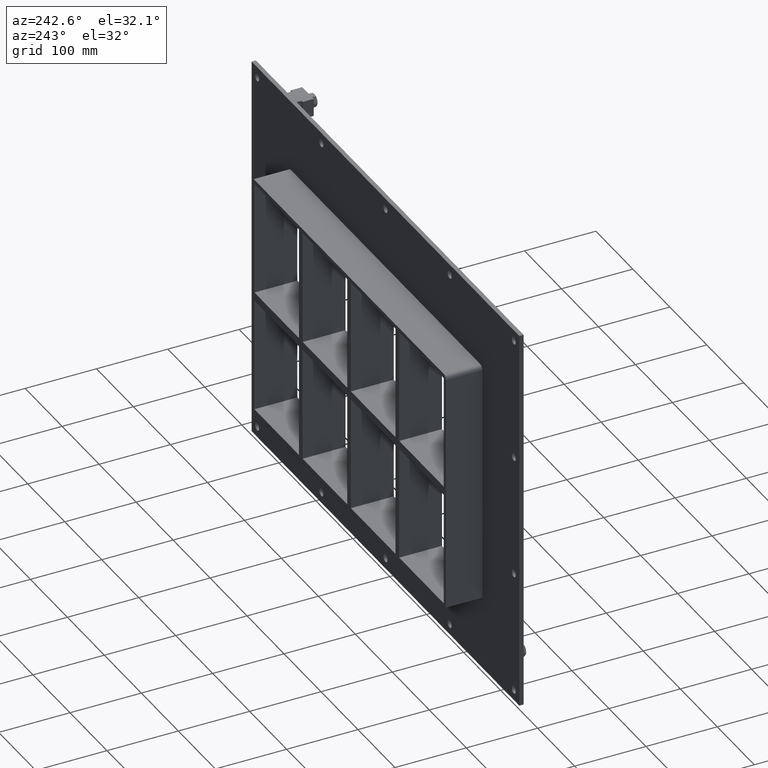
[diagram: clean part render]
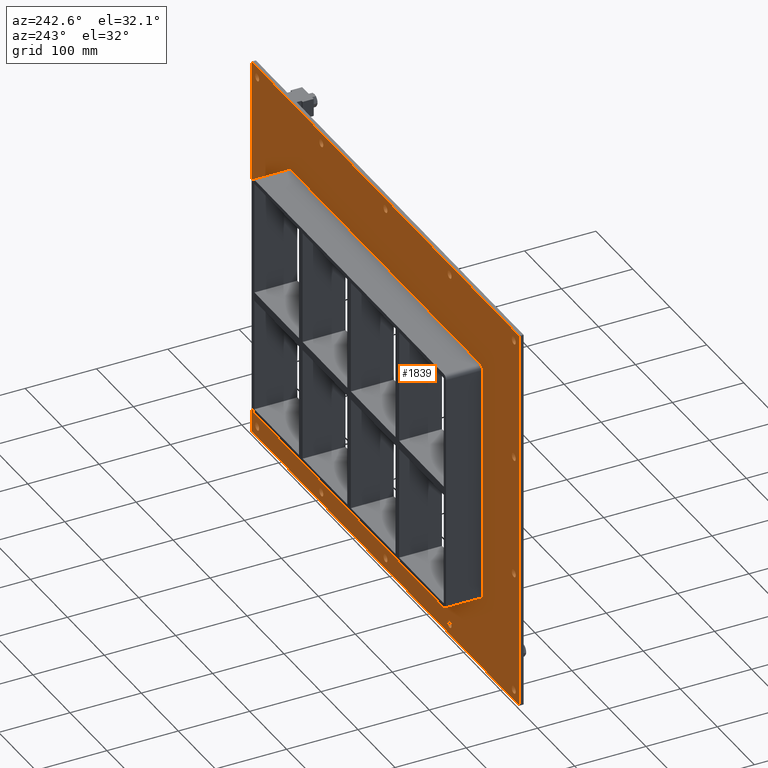
[diagram: same view with one face highlighted and labeled with its STEP entity id]
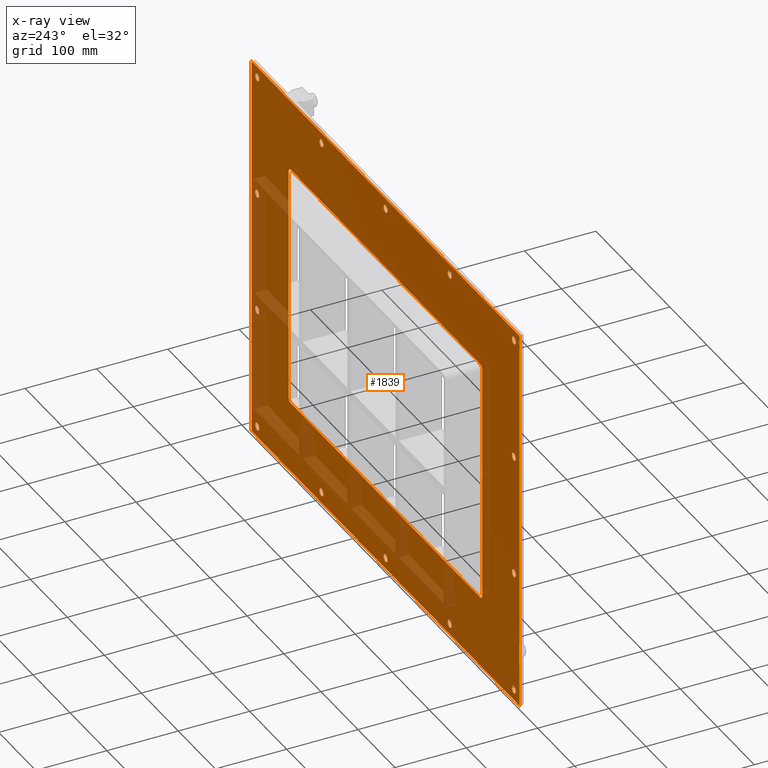
[diagram: x-ray of the same camera — body ghosted, the highlighted face saturated]
A machine part, auxiliary view. The second image highlights one B-rep face of the part: STEP entity #1839.
The next image is the same camera in x-ray: the body ghosted, the highlighted face saturated — about 17% of this face is hidden behind the body in this view.
In plain terms, the highlighted planar face has unit normal (0, 1, 0).
Its self-contained STEP definition (entity closure, byte-faithful):
#73=CARTESIAN_POINT('',(-352.25000000000017,5.999999999999943,-256.50000000000006));
#74=VERTEX_POINT('',#73);
#75=CARTESIAN_POINT('',(-347.00000000000017,5.999999999999943,-256.50000000000006));
#76=DIRECTION('',(0.0,-1.0,0.0));
#77=DIRECTION('',(1.0,0.0,0.0));
#78=AXIS2_PLACEMENT_3D('',#75,#76,#77);
#79=CIRCLE('',#78,5.25);
#80=EDGE_CURVE('',#74,#74,#79,.T.);
#101=CARTESIAN_POINT('',(341.74999999999989,5.999999999999943,-85.500000000000043));
#102=VERTEX_POINT('',#101);
#103=CARTESIAN_POINT('',(346.99999999999989,5.999999999999943,-85.500000000000043));
#104=DIRECTION('',(0.0,-1.0,0.0));
#105=DIRECTION('',(1.0,0.0,0.0));
#106=AXIS2_PLACEMENT_3D('',#103,#104,#105);
#107=CIRCLE('',#106,5.25);
#108=EDGE_CURVE('',#102,#102,#107,.T.);
#129=CARTESIAN_POINT('',(-352.25000000000017,5.999999999999943,-85.500000000000043));
#130=VERTEX_POINT('',#129);
#131=CARTESIAN_POINT('',(-347.00000000000017,5.999999999999943,-85.500000000000043));
#132=DIRECTION('',(0.0,-1.0,0.0));
#133=DIRECTION('',(1.0,0.0,0.0));
#134=AXIS2_PLACEMENT_3D('',#131,#132,#133);
#135=CIRCLE('',#134,5.25);
#136=EDGE_CURVE('',#130,#130,#135,.T.);
#157=CARTESIAN_POINT('',(341.74999999999989,5.999999999999943,85.499999999999972));
#158=VERTEX_POINT('',#157);
#159=CARTESIAN_POINT('',(346.99999999999989,5.999999999999943,85.499999999999972));
#160=DIRECTION('',(0.0,-1.0,0.0));
#161=DIRECTION('',(1.0,0.0,0.0));
#162=AXIS2_PLACEMENT_3D('',#159,#160,#161);
#163=CIRCLE('',#162,5.25);
#164=EDGE_CURVE('',#158,#158,#163,.T.);
#185=CARTESIAN_POINT('',(-352.25000000000017,5.999999999999943,85.499999999999972));
#186=VERTEX_POINT('',#185);
#187=CARTESIAN_POINT('',(-347.00000000000017,5.999999999999943,85.499999999999972));
#188=DIRECTION('',(0.0,-1.0,0.0));
#189=DIRECTION('',(1.0,0.0,0.0));
#190=AXIS2_PLACEMENT_3D('',#187,#188,#189);
#191=CIRCLE('',#190,5.25);
#192=EDGE_CURVE('',#186,#186,#191,.T.);
#213=CARTESIAN_POINT('',(-178.75000000000014,5.999999999999943,256.5));
#214=VERTEX_POINT('',#213);
#215=CARTESIAN_POINT('',(-173.50000000000017,5.999999999999943,256.5));
#216=DIRECTION('',(0.0,-1.0,0.0));
#217=DIRECTION('',(1.0,0.0,0.0));
#218=AXIS2_PLACEMENT_3D('',#215,#216,#217);
#219=CIRCLE('',#218,5.25);
#220=EDGE_CURVE('',#214,#214,#219,.T.);
#241=CARTESIAN_POINT('',(-178.75000000000014,5.999999999999943,-256.50000000000006));
#242=VERTEX_POINT('',#241);
#243=CARTESIAN_POINT('',(-173.50000000000017,5.999999999999943,-256.50000000000006));
#244=DIRECTION('',(0.0,-1.0,0.0));
#245=DIRECTION('',(1.0,0.0,0.0));
#246=AXIS2_PLACEMENT_3D('',#243,#244,#245);
#247=CIRCLE('',#246,5.25);
#248=EDGE_CURVE('',#242,#242,#247,.T.);
#269=CARTESIAN_POINT('',(-5.250000000000128,5.999999999999943,256.5));
#270=VERTEX_POINT('',#269);
#271=CARTESIAN_POINT('',(-1.421085E-013,5.999999999999943,256.5));
#272=DIRECTION('',(0.0,-1.0,0.0));
#273=DIRECTION('',(1.0,0.0,0.0));
#274=AXIS2_PLACEMENT_3D('',#271,#272,#273);
#275=CIRCLE('',#274,5.25);
#276=EDGE_CURVE('',#270,#270,#275,.T.);
#297=CARTESIAN_POINT('',(-5.250000000000128,5.999999999999943,-256.50000000000006));
#298=VERTEX_POINT('',#297);
#299=CARTESIAN_POINT('',(-1.421085E-013,5.999999999999943,-256.50000000000006));
#300=DIRECTION('',(0.0,-1.0,0.0));
#301=DIRECTION('',(1.0,0.0,0.0));
#302=AXIS2_PLACEMENT_3D('',#299,#300,#301);
#303=CIRCLE('',#302,5.25);
#304=EDGE_CURVE('',#298,#298,#303,.T.);
#325=CARTESIAN_POINT('',(168.24999999999989,5.999999999999943,256.5));
#326=VERTEX_POINT('',#325);
#327=CARTESIAN_POINT('',(173.49999999999989,5.999999999999943,256.5));
#328=DIRECTION('',(0.0,-1.0,0.0));
#329=DIRECTION('',(1.0,0.0,0.0));
#330=AXIS2_PLACEMENT_3D('',#327,#328,#329);
#331=CIRCLE('',#330,5.25);
#332=EDGE_CURVE('',#326,#326,#331,.T.);
#353=CARTESIAN_POINT('',(168.24999999999989,5.999999999999943,-256.50000000000006));
#354=VERTEX_POINT('',#353);
#355=CARTESIAN_POINT('',(173.49999999999989,5.999999999999943,-256.50000000000006));
#356=DIRECTION('',(0.0,-1.0,0.0));
#357=DIRECTION('',(1.0,0.0,0.0));
#358=AXIS2_PLACEMENT_3D('',#355,#356,#357);
#359=CIRCLE('',#358,5.25);
#360=EDGE_CURVE('',#354,#354,#359,.T.);
#381=CARTESIAN_POINT('',(341.74999999999989,5.999999999999943,-256.50000000000006));
#382=VERTEX_POINT('',#381);
#383=CARTESIAN_POINT('',(346.99999999999989,5.999999999999943,-256.50000000000006));
#384=DIRECTION('',(0.0,-1.0,0.0));
#385=DIRECTION('',(1.0,0.0,0.0));
#386=AXIS2_PLACEMENT_3D('',#383,#384,#385);
#387=CIRCLE('',#386,5.25);
#388=EDGE_CURVE('',#382,#382,#387,.T.);
#409=CARTESIAN_POINT('',(-352.25000000000017,5.999999999999943,256.5));
#410=VERTEX_POINT('',#409);
#411=CARTESIAN_POINT('',(-347.00000000000017,5.999999999999943,256.5));
#412=DIRECTION('',(0.0,-1.0,0.0));
#413=DIRECTION('',(1.0,0.0,0.0));
#414=AXIS2_PLACEMENT_3D('',#411,#412,#413);
#415=CIRCLE('',#414,5.25);
#416=EDGE_CURVE('',#410,#410,#415,.T.);
#437=CARTESIAN_POINT('',(341.74999999999989,5.999999999999943,256.5));
#438=VERTEX_POINT('',#437);
#439=CARTESIAN_POINT('',(346.99999999999989,5.999999999999943,256.5));
#440=DIRECTION('',(0.0,-1.0,0.0));
#441=DIRECTION('',(1.0,0.0,0.0));
#442=AXIS2_PLACEMENT_3D('',#439,#440,#441);
#443=CIRCLE('',#442,5.25);
#444=EDGE_CURVE('',#438,#438,#443,.T.);
#1688=CARTESIAN_POINT('',(-5.383749E-014,6.000000000000001,-3.453170E-014));
#1689=DIRECTION('',(0.0,1.0,0.0));
#1690=DIRECTION('',(0.0,0.0,1.0));
#1691=AXIS2_PLACEMENT_3D('',#1688,#1689,#1690);
#1692=PLANE('',#1691);
#1693=CARTESIAN_POINT('',(-362.0,6.000000000000001,271.5));
#1694=VERTEX_POINT('',#1693);
#1695=CARTESIAN_POINT('',(362.0,6.000000000000001,271.5));
#1696=VERTEX_POINT('',#1695);
#1697=CARTESIAN_POINT('',(-362.0,6.000000000000001,271.5));
#1698=DIRECTION('',(1.0,0.0,0.0));
#1699=VECTOR('',#1698,724.0);
#1700=LINE('',#1697,#1699);
#1701=EDGE_CURVE('',#1694,#1696,#1700,.T.);
#1702=ORIENTED_EDGE('',*,*,#1701,.T.);
#1703=CARTESIAN_POINT('',(362.0,6.000000000000001,-271.50000000000006));
#1704=VERTEX_POINT('',#1703);
#1705=CARTESIAN_POINT('',(361.99999999999994,6.000000000000001,271.5));
#1706=DIRECTION('',(0.0,0.0,-1.0));
#1707=VECTOR('',#1706,543.0);
#1708=LINE('',#1705,#1707);
#1709=EDGE_CURVE('',#1696,#1704,#1708,.T.);
#1710=ORIENTED_EDGE('',*,*,#1709,.T.);
#1711=CARTESIAN_POINT('',(-362.0,6.000000000000001,-271.50000000000006));
#1712=VERTEX_POINT('',#1711);
#1713=CARTESIAN_POINT('',(361.99999999999994,6.000000000000001,-271.50000000000006));
#1714=DIRECTION('',(-1.0,0.0,0.0));
#1715=VECTOR('',#1714,724.0);
#1716=LINE('',#1713,#1715);
#1717=EDGE_CURVE('',#1704,#1712,#1716,.T.);
#1718=ORIENTED_EDGE('',*,*,#1717,.T.);
#1719=CARTESIAN_POINT('',(-362.0,6.000000000000001,-271.50000000000006));
#1720=DIRECTION('',(0.0,0.0,1.0));
#1721=VECTOR('',#1720,543.0);
#1722=LINE('',#1719,#1721);
#1723=EDGE_CURVE('',#1712,#1694,#1722,.T.);
#1724=ORIENTED_EDGE('',*,*,#1723,.T.);
#1725=EDGE_LOOP('',(#1702,#1710,#1718,#1724));
#1726=FACE_OUTER_BOUND('',#1725,.T.);
#1727=ORIENTED_EDGE('',*,*,#80,.T.);
#1728=EDGE_LOOP('',(#1727));
#1729=FACE_BOUND('',#1728,.T.);
#1730=ORIENTED_EDGE('',*,*,#108,.T.);
#1731=EDGE_LOOP('',(#1730));
#1732=FACE_BOUND('',#1731,.T.);
#1733=ORIENTED_EDGE('',*,*,#136,.T.);
#1734=EDGE_LOOP('',(#1733));
#1735=FACE_BOUND('',#1734,.T.);
#1736=ORIENTED_EDGE('',*,*,#164,.T.);
#1737=EDGE_LOOP('',(#1736));
#1738=FACE_BOUND('',#1737,.T.);
#1739=ORIENTED_EDGE('',*,*,#192,.T.);
#1740=EDGE_LOOP('',(#1739));
#1741=FACE_BOUND('',#1740,.T.);
#1742=ORIENTED_EDGE('',*,*,#220,.T.);
#1743=EDGE_LOOP('',(#1742));
#1744=FACE_BOUND('',#1743,.T.);
#1745=ORIENTED_EDGE('',*,*,#248,.T.);
#1746=EDGE_LOOP('',(#1745));
#1747=FACE_BOUND('',#1746,.T.);
#1748=ORIENTED_EDGE('',*,*,#276,.T.);
#1749=EDGE_LOOP('',(#1748));
#1750=FACE_BOUND('',#1749,.T.);
#1751=ORIENTED_EDGE('',*,*,#304,.T.);
#1752=EDGE_LOOP('',(#1751));
#1753=FACE_BOUND('',#1752,.T.);
#1754=ORIENTED_EDGE('',*,*,#332,.T.);
#1755=EDGE_LOOP('',(#1754));
#1756=FACE_BOUND('',#1755,.T.);
#1757=ORIENTED_EDGE('',*,*,#360,.T.);
#1758=EDGE_LOOP('',(#1757));
#1759=FACE_BOUND('',#1758,.T.);
#1760=ORIENTED_EDGE('',*,*,#388,.T.);
#1761=EDGE_LOOP('',(#1760));
#1762=FACE_BOUND('',#1761,.T.);
#1763=ORIENTED_EDGE('',*,*,#416,.T.);
#1764=EDGE_LOOP('',(#1763));
#1765=FACE_BOUND('',#1764,.T.);
#1766=ORIENTED_EDGE('',*,*,#444,.T.);
#1767=EDGE_LOOP('',(#1766));
#1768=FACE_BOUND('',#1767,.T.);
#1769=CARTESIAN_POINT('',(-262.0,6.000000000000001,165.5));
#1770=VERTEX_POINT('',#1769);
#1771=CARTESIAN_POINT('',(-256.0,6.000000000000001,171.50000000000003));
#1772=VERTEX_POINT('',#1771);
#1773=CARTESIAN_POINT('',(-256.0,6.000000000000001,165.5));
#1774=DIRECTION('',(0.0,1.0,0.0));
#1775=DIRECTION('',(-0.707106781186548,0.0,0.707106781186548));
#1776=AXIS2_PLACEMENT_3D('',#1773,#1774,#1775);
#1777=CIRCLE('',#1776,6.000000000000002);
#1778=EDGE_CURVE('',#1770,#1772,#1777,.T.);
#1779=ORIENTED_EDGE('',*,*,#1778,.F.);
#1780=CARTESIAN_POINT('',(-262.0,6.000000000000001,-165.5));
#1781=VERTEX_POINT('',#1780);
#1782=CARTESIAN_POINT('',(-262.0,6.000000000000001,-165.5));
#1783=DIRECTION('',(0.0,0.0,1.0));
#1784=VECTOR('',#1783,331.0);
#1785=LINE('',#1782,#1784);
#1786=EDGE_CURVE('',#1781,#1770,#1785,.T.);
#1787=ORIENTED_EDGE('',*,*,#1786,.F.);
#1788=CARTESIAN_POINT('',(-256.0,6.000000000000001,-171.50000000000003));
#1789=VERTEX_POINT('',#1788);
#1790=CARTESIAN_POINT('',(-256.0,6.000000000000001,-165.5));
#1791=DIRECTION('',(0.0,1.0,0.0));
#1792=DIRECTION('',(-0.707106781186548,0.0,-0.707106781186548));
#1793=AXIS2_PLACEMENT_3D('',#1790,#1791,#1792);
#1794=CIRCLE('',#1793,6.000000000000002);
#1795=EDGE_CURVE('',#1789,#1781,#1794,.T.);
#1796=ORIENTED_EDGE('',*,*,#1795,.F.);
#1797=CARTESIAN_POINT('',(256.0,6.000000000000001,-171.50000000000003));
#1798=VERTEX_POINT('',#1797);
#1799=CARTESIAN_POINT('',(256.0,6.000000000000001,-171.50000000000003));
#1800=DIRECTION('',(-1.0,0.0,0.0));
#1801=VECTOR('',#1800,512.0);
#1802=LINE('',#1799,#1801);
#1803=EDGE_CURVE('',#1798,#1789,#1802,.T.);
#1804=ORIENTED_EDGE('',*,*,#1803,.F.);
#1805=CARTESIAN_POINT('',(262.0,6.000000000000001,-165.5));
#1806=VERTEX_POINT('',#1805);
#1807=CARTESIAN_POINT('',(256.0,6.000000000000001,-165.5));
#1808=DIRECTION('',(0.0,1.0,0.0));
#1809=DIRECTION('',(0.707106781186548,0.0,-0.707106781186548));
#1810=AXIS2_PLACEMENT_3D('',#1807,#1808,#1809);
#1811=CIRCLE('',#1810,6.000000000000002);
#1812=EDGE_CURVE('',#1806,#1798,#1811,.T.);
#1813=ORIENTED_EDGE('',*,*,#1812,.F.);
#1814=CARTESIAN_POINT('',(262.0,6.000000000000001,165.5));
#1815=VERTEX_POINT('',#1814);
#1816=CARTESIAN_POINT('',(262.0,6.000000000000001,165.5));
#1817=DIRECTION('',(0.0,0.0,-1.0));
#1818=VECTOR('',#1817,331.0);
#1819=LINE('',#1816,#1818);
#1820=EDGE_CURVE('',#1815,#1806,#1819,.T.);
#1821=ORIENTED_EDGE('',*,*,#1820,.F.);
#1822=CARTESIAN_POINT('',(256.0,6.000000000000001,171.50000000000003));
#1823=VERTEX_POINT('',#1822);
#1824=CARTESIAN_POINT('',(256.0,6.000000000000001,165.5));
#1825=DIRECTION('',(0.0,1.0,0.0));
#1826=DIRECTION('',(0.707106781186548,0.0,0.707106781186548));
#1827=AXIS2_PLACEMENT_3D('',#1824,#1825,#1826);
#1828=CIRCLE('',#1827,6.000000000000002);
#1829=EDGE_CURVE('',#1823,#1815,#1828,.T.);
#1830=ORIENTED_EDGE('',*,*,#1829,.F.);
#1831=CARTESIAN_POINT('',(-256.0,6.000000000000001,171.50000000000003));
#1832=DIRECTION('',(1.0,0.0,0.0));
#1833=VECTOR('',#1832,511.99999999999994);
#1834=LINE('',#1831,#1833);
#1835=EDGE_CURVE('',#1772,#1823,#1834,.T.);
#1836=ORIENTED_EDGE('',*,*,#1835,.F.);
#1837=EDGE_LOOP('',(#1779,#1787,#1796,#1804,#1813,#1821,#1830,#1836));
#1838=FACE_BOUND('',#1837,.T.);
#1839=ADVANCED_FACE('',(#1726,#1729,#1732,#1735,#1738,#1741,#1744,#1747,#1750,#1753,#1756,#1759,#1762,#1765,#1768,#1838),#1692,.T.);